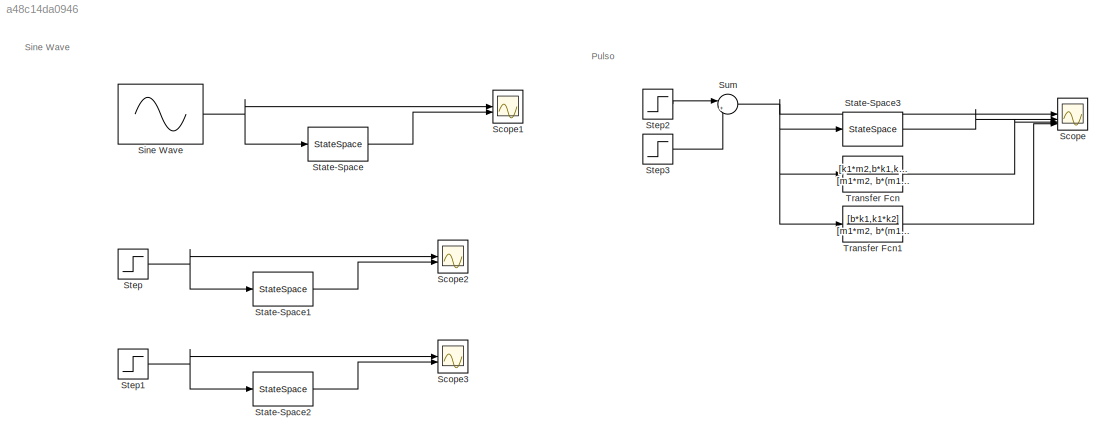
MODEL slx_a48c14da0946
KIND model
CONFIG AbsTol = auto
CONFIG EnableMultiTasking = off
CONFIG FixedStep = auto
CONFIG MaxStep = auto
CONFIG MinStep = auto
CONFIG RelTol = 1e-3
CONFIG SampleTimeConstraint = Unconstrained
CONFIG SolverName = VariableStepAuto
CONFIG StartTime = 0.0
CONFIG StopTime = 10.0
BLOCK [Scope] Scope
  Floating = off
  NumInputPorts = 4
  ScopeSpecificationString = Simulink.scopes.TimeScopeBlockCfg('CurrentConfiguration', extmgr.ConfigurationSet(extmgr.Configuration('Core','General UI',true),extmgr.Configuration('Core','Source UI',true),extmgr.Configuration('Sources','WiredSimulink',true,'DataLoggingVariableName','ScopeData1'),extmgr.Configuration('Visuals','Time Domain',true,'SerializedDisplays',{struct('MinYLimReal','-0.45141','MaxYLimReal','0.42736','YLab...<+1750ch>
BLOCK [Scope] Scope1
  Floating = off
  NumInputPorts = 2
  ScopeSpecificationString = Simulink.scopes.TimeScopeBlockCfg('CurrentConfiguration', extmgr.ConfigurationSet(extmgr.Configuration('Core','General UI',true),extmgr.Configuration('Core','Source UI',true),extmgr.Configuration('Sources','WiredSimulink',true,'DataLoggingVariableName','ScopeData2'),extmgr.Configuration('Visuals','Time Domain',true,'SerializedDisplays',{struct('MinYLimReal','-1.46757','MaxYLimReal','1.46783','YLab...<+1559ch>
BLOCK [Scope] Scope2
  Floating = off
  NumInputPorts = 2
  ScopeSpecificationString = Simulink.scopes.TimeScopeBlockCfg('CurrentConfiguration', extmgr.ConfigurationSet(extmgr.Configuration('Core','General UI',true),extmgr.Configuration('Core','Source UI',true),extmgr.Configuration('Sources','WiredSimulink',true,'DataLoggingVariableName','ScopeData3'),extmgr.Configuration('Visuals','Time Domain',true,'SerializedDisplays',{struct('MinYLimReal','-1.46757','MaxYLimReal','1.46783','YLab...<+1580ch>
BLOCK [Scope] Scope3
  Floating = off
  NumInputPorts = 2
  ScopeSpecificationString = Simulink.scopes.TimeScopeBlockCfg('CurrentConfiguration', extmgr.ConfigurationSet(extmgr.Configuration('Core','General UI',true),extmgr.Configuration('Core','Source UI',true),extmgr.Configuration('Sources','WiredSimulink',true),extmgr.Configuration('Visuals','Time Domain',true,'SerializedDisplays',{struct('MinYLimReal','-1.46757','MaxYLimReal','1.46783','YLabelReal','','MinYLimMag','0.00000','MaxY...<+1514ch>
BLOCK [Sin] Sine Wave
  SampleTime = 0
BLOCK [StateSpace] State-Space
  A = [0 0 1 0; 0 0 0 1; -(k1+k2)/m1 k2/m1 -b/m1 b/m1; k2/m2 -k2/m2 b/m2 -b/m2]
  B = [0; 0; k1/m1; 0]
  C = [1 0 0 0; 0 1 0 0]
  D = [0;0]
  InitialCondition = 0
BLOCK [StateSpace] State-Space1
  A = [0 0 1 0; 0 0 0 1; -(k1+k2)/m1 k2/m1 -b/m1 b/m1; k2/m2 -k2/m2 b/m2 -b/m2]
  B = [0; 0; k1/m1; 0]
  C = [1 0 0 0; 0 1 0 0]
  D = [0;0]
  InitialCondition = 0
BLOCK [StateSpace] State-Space2
  A = [0 0 1 0; 0 0 0 1; -(k1+k2)/m1 k2/m1 -b/m1 b/m1; k2/m2 -k2/m2 b/m2 -b/m2]
  B = [0; 0; k1/m1; 0]
  C = [1 0 0 0; 0 1 0 0]
  D = [0;0]
  InitialCondition = 0
BLOCK [StateSpace] State-Space3
  A = [0 0 1 0; 0 0 0 1; -(k1+k2)/m1 k2/m1 -b/m1 b/m1; k2/m2 -k2/m2 b/m2 -b/m2]
  B = [0; 0; k1/m1; 0]
  C = [1 0 0 0; 0 1 0 0]
  D = [0;0]
  InitialCondition = 0
BLOCK [Step] Step
  SampleTime = 0
BLOCK [Step] Step1
  After = 0
  Before = 1
  SampleTime = 0
BLOCK [Step] Step2
  After = 0.2
  SampleTime = 0
  ZeroCross = off
BLOCK [Step] Step3
  After = -0.2
  SampleTime = 0
  Time = 0.25
BLOCK [Sum] Sum
  Inputs = |++
BLOCK [TransferFcn] Transfer Fcn
  Denominator = [m1*m2, b*(m1+m2),m2*(k1+k2)+m1*k2,b*k1,k2*k1]
  Numerator = [k1*m2,b*k1,k1*k2]
BLOCK [TransferFcn] Transfer Fcn1
  Denominator = [m1*m2, b*(m1+m2),k1*m2+(m1+m2)*k2,b*k1,k2*k1]
  Numerator = [b*k1,k1*k2]
ANNOTATION (root): Pulso
ANNOTATION (root): Sine Wave
NET Sine Wave:1 -> Scope1:1, State-Space:1
LINE State-Space1:1 -> Scope2:2
LINE State-Space2:1 -> Scope3:2
LINE State-Space3:1 -> Scope:2
LINE State-Space:1 -> Scope1:2
NET Step1:1 -> Scope3:1, State-Space2:1
LINE Step2:1 -> Sum:1
LINE Step3:1 -> Sum:2
NET Step:1 -> Scope2:1, State-Space1:1
NET Sum:1 -> Scope:1, State-Space3:1, Transfer Fcn1:1, Transfer Fcn:1
LINE Transfer Fcn1:1 -> Scope:4
LINE Transfer Fcn:1 -> Scope:3
note: NET lines group one-source signal fan-out (src -> all destinations, sorted); 1:1 wires keep LINE
